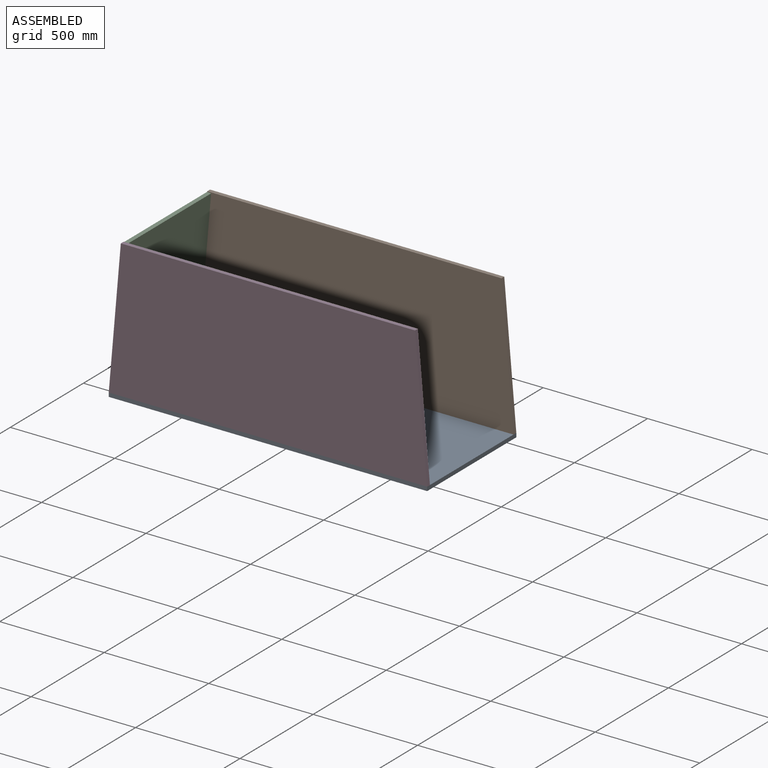
[diagram: assembled view]
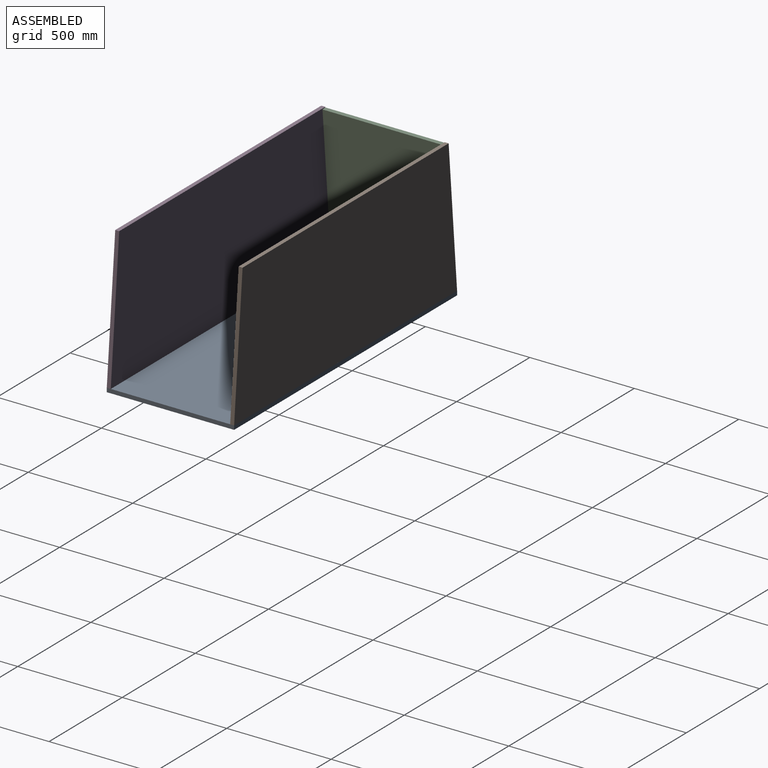
[diagram: assembled view, second angle]
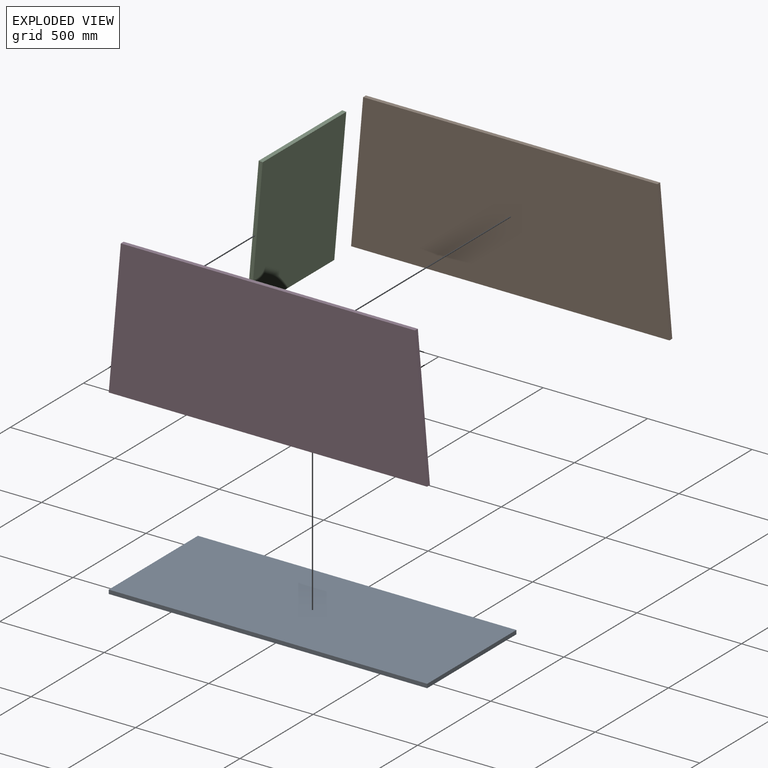
[diagram: exploded view]
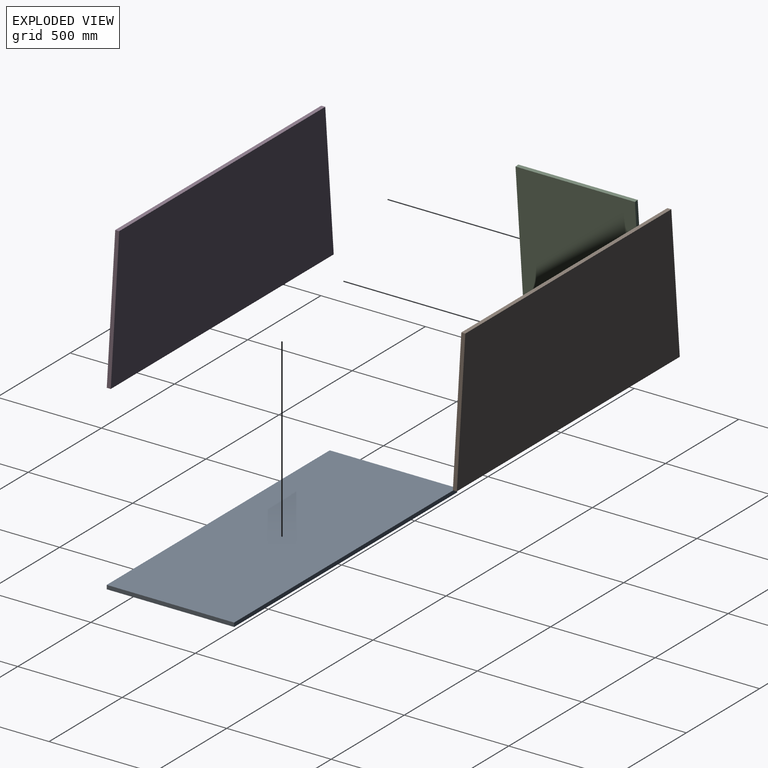
[diagram: exploded view, second angle]
ASSEMBLY  parts=4 mates=9
PART A: 6 faces, bbox 1524x609.6x19.1 mm
  f0: plane 1524x19.05mm, normal (0,1,0), area 29032.2mm2, adj f1,f3,f4,f5
  f1: plane 609.6x19.05mm, normal (-1,0,0), area 11612.9mm2, adj f0,f2,f4,f5
  f2: plane 1524x19.05mm, normal (0,-1,0), area 29032.2mm2, adj f1,f3,f4,f5
  f3: plane 609.6x19.05mm, normal (1,0,0), area 11612.9mm2, adj f0,f2,f4,f5
  f4: plane 1524x609.6mm, normal (0,0,1), area 929030.4mm2, adj f0,f1,f2,f3
  f5: plane 1524x609.6mm, normal (0,0,-1), area 929030.4mm2, adj f0,f1,f2,f3
PART B: 6 faces, bbox 1524x19.1x660.4 mm
  f0: plane 1408.45x19.05mm, normal (0,0,1), area 26830.9mm2, adj f1,f3,f4,f5
  f1: plane 660.4x57.78mm, normal (-1,0,0.09), area 12628.7mm2, adj f0,f2,f4,f5
  f2: plane 1524x19.05mm, normal (0,0,-1), area 29032.2mm2, adj f1,f3,f4,f5
  f3: plane 660.4x57.78mm, normal (1,0,0.09), area 12628.7mm2, adj f0,f2,f4,f5
  f4: plane 1524x660.4mm, normal (0,-1,0), area 968293.3mm2, adj f0,f1,f2,f3
  f5: plane 1524x660.4mm, normal (0,1,0), area 968293.3mm2, adj f0,f1,f2,f3
PART C: 6 faces, bbox 19.1x571.5x660.3 mm
  f0: plane 660.33x19.05mm, normal (0,-1,0), area 12563.5mm2, adj f2,f3,f4,f5
  f1: plane 660.33x19.05mm, normal (0,1,0), area 12563.5mm2, adj f2,f3,f4,f5
  f2: plane 571.5x19.05mm, normal (0,0,1), area 10887.1mm2, adj f0,f1,f3,f4
  f3: plane 658.67x571.5mm, normal (1,0,0), area 376428mm2, adj f0,f1,f2,f5
  f4: plane 660.33x571.5mm, normal (-1,0,0), area 377380.5mm2, adj f0,f1,f2,f5
  f5: plane 571.5x19.05mm, normal (0.09,0,-1), area 10928.7mm2, adj f0,f1,f3,f4
PART D: same geometry as B
PLACE A at identity fixed
PLACE B t=(-1.99,17.72,188.02)mm
PLACE C rot(axis=(0,1,0),5deg) t=(-735.59,-317.33,343.75)mm
PLACE D t=(-1.99,-572.83,188.02)mm
MATE planar C.f4 <-> B.f1  axis (-1,0,0.09) through (-735.22,-287.08,347.96)mm
MATE planar C.f5 <-> A.f4  axis (0,0,-1) through (-754.43,-287.08,19.05)mm
MATE planar C.f4 <-> D.f1  axis (-1,0,0.09) through (-735.22,-287.08,347.96)mm
MATE fastened B.f5 <-> A.f0  axis (0,1,0) through (-763.99,17.72,19.05)mm
MATE planar D.f4 <-> A.f2  axis (0,-1,0) through (-1.99,-591.88,344.91)mm
MATE planar D.f2 <-> A.f4  axis (0,0,-1) through (-1.99,-582.36,19.05)mm
MATE planar B.f2 <-> A.f4  axis (0,0,-1) through (-1.99,8.19,19.05)mm
MATE planar C.f0 <-> D.f5  axis (0,-1,0) through (-725.7,-572.83,347.55)mm
MATE planar A.f0 <-> B.f5  axis (0,1,0) through (-1.99,17.72,9.53)mm
